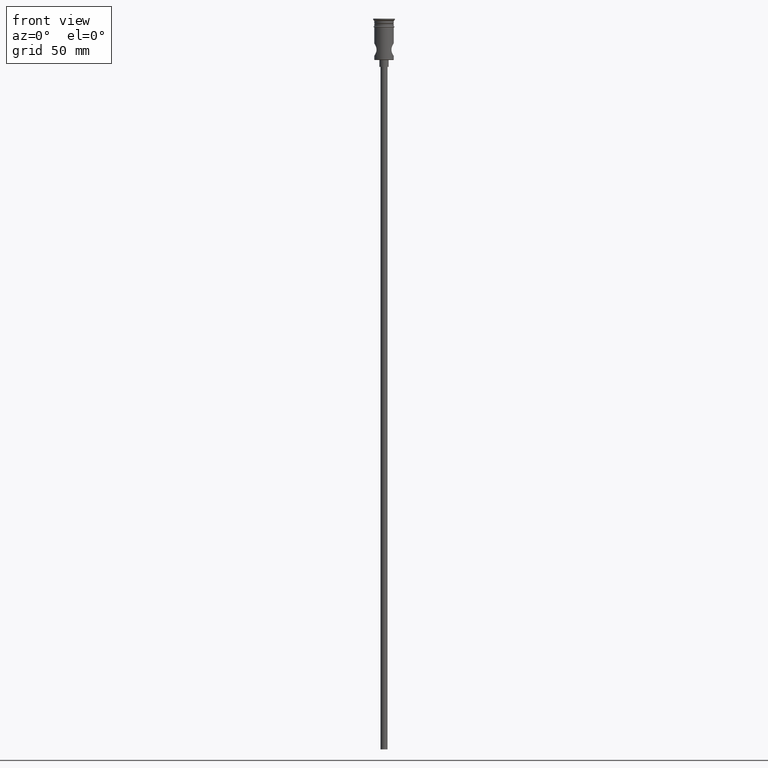
[diagram: clean part render]
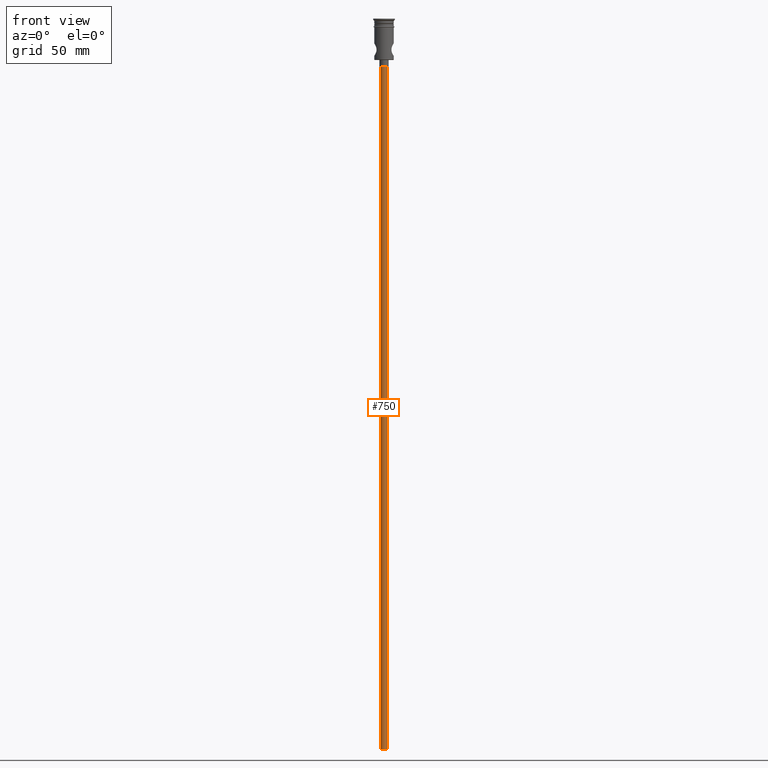
[diagram: same view with one face highlighted and labeled with its STEP entity id]
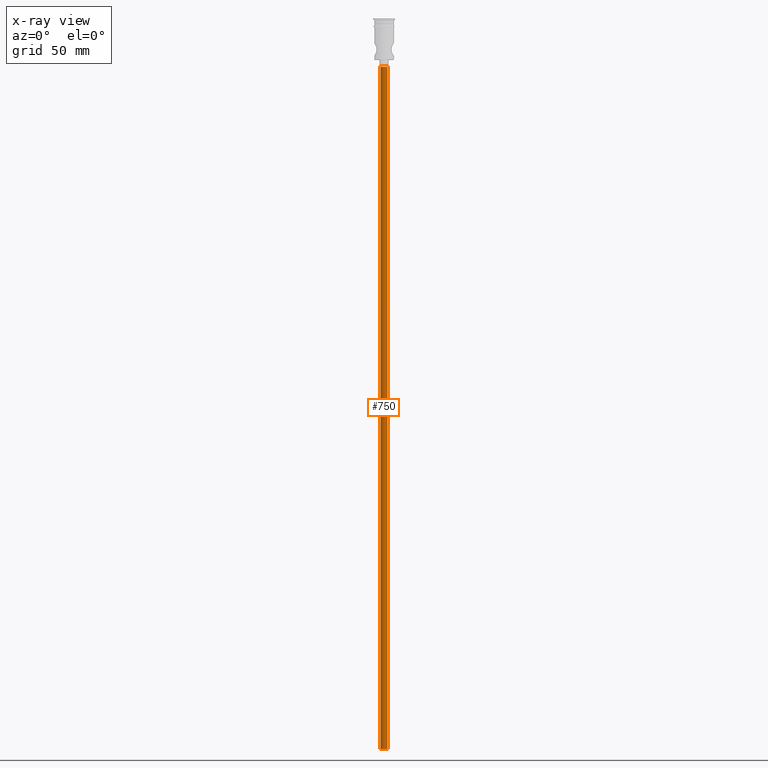
[diagram: x-ray of the same camera — body ghosted, the highlighted face saturated]
A machine part, front view. The second image highlights one B-rep face of the part: STEP entity #750.
The next image is the same camera in x-ray: the body ghosted, the highlighted face saturated — about 0% of this face is hidden behind the body in this view.
In plain terms, the highlighted cylindrical surface (edge-blend (fillet) strip) has radius 1.5 mm, axis along (-0, -0, 1).
Its self-contained STEP definition (entity closure, byte-faithful):
#32 = LINE ( 'NONE', #1305, #168 ) ;
#60 = DIRECTION ( 'NONE',  ( 1.000000000000000000, 0.000000000000000000, 0.000000000000000000 ) ) ;
#64 = ORIENTED_EDGE ( 'NONE', *, *, #224, .T. ) ;
#109 = DIRECTION ( 'NONE',  ( 0.000000000000000000, 0.000000000000000000, -1.000000000000000000 ) ) ;
#168 = VECTOR ( 'NONE', #316, 1000.000000000000000 ) ;
#173 = CARTESIAN_POINT ( 'NONE',  ( 0.000000000000000000, 0.000000000000000000, -318.0000000000000000 ) ) ;
#224 = EDGE_CURVE ( 'NONE', #1190, #788, #32, .T. ) ;
#271 = CYLINDRICAL_SURFACE ( 'NONE', #1117, 1.500000000000000222 ) ;
#316 = DIRECTION ( 'NONE',  ( -0.000000000000000000, -0.000000000000000000, 1.000000000000000000 ) ) ;
#343 = EDGE_CURVE ( 'NONE', #1121, #901, #381, .T. ) ;
#381 = LINE ( 'NONE', #1041, #869 ) ;
#497 = DIRECTION ( 'NONE',  ( -0.000000000000000000, -0.000000000000000000, 1.000000000000000000 ) ) ;
#524 = DIRECTION ( 'NONE',  ( -0.000000000000000000, -0.000000000000000000, 1.000000000000000000 ) ) ;
#568 = DIRECTION ( 'NONE',  ( -1.000000000000000000, 0.000000000000000000, 0.000000000000000000 ) ) ;
#640 = CIRCLE ( 'NONE', #1004, 1.500000000000000222 ) ;
#650 = CARTESIAN_POINT ( 'NONE',  ( 0.000000000000000000, 0.000000000000000000, -20.99999999999999645 ) ) ;
#702 = CARTESIAN_POINT ( 'NONE',  ( -1.500000000000000222, 1.836970198721030181E-16, -318.0000000000000000 ) ) ;
#738 = CIRCLE ( 'NONE', #1421, 1.500000000000000222 ) ;
#750 = ADVANCED_FACE ( 'NONE', ( #1258 ), #271, .T. ) ;
#753 = CARTESIAN_POINT ( 'NONE',  ( 1.500000000000000222, 0.000000000000000000, -20.99999999999999645 ) ) ;
#788 = VERTEX_POINT ( 'NONE', #753 ) ;
#863 = DIRECTION ( 'NONE',  ( 0.000000000000000000, 0.000000000000000000, -1.000000000000000000 ) ) ;
#869 = VECTOR ( 'NONE', #524, 1000.000000000000000 ) ;
#870 = EDGE_CURVE ( 'NONE', #1190, #1121, #738, .T. ) ;
#877 = ORIENTED_EDGE ( 'NONE', *, *, #343, .F. ) ;
#901 = VERTEX_POINT ( 'NONE', #1200 ) ;
#920 = CARTESIAN_POINT ( 'NONE',  ( 1.500000000000000222, 0.000000000000000000, -318.0000000000000000 ) ) ;
#962 = EDGE_LOOP ( 'NONE', ( #877, #1365, #64, #972 ) ) ;
#972 = ORIENTED_EDGE ( 'NONE', *, *, #1429, .T. ) ;
#1004 = AXIS2_PLACEMENT_3D ( 'NONE', #650, #109, #568 ) ;
#1041 = CARTESIAN_POINT ( 'NONE',  ( -1.500000000000000222, 1.836970198721030181E-16, -318.0000000000000000 ) ) ;
#1085 = DIRECTION ( 'NONE',  ( -1.000000000000000000, 0.000000000000000000, 0.000000000000000000 ) ) ;
#1117 = AXIS2_PLACEMENT_3D ( 'NONE', #173, #497, #60 ) ;
#1121 = VERTEX_POINT ( 'NONE', #702 ) ;
#1182 = CARTESIAN_POINT ( 'NONE',  ( 0.000000000000000000, 0.000000000000000000, -318.0000000000000000 ) ) ;
#1190 = VERTEX_POINT ( 'NONE', #920 ) ;
#1200 = CARTESIAN_POINT ( 'NONE',  ( -1.500000000000000222, 1.836970198721030181E-16, -20.99999999999999645 ) ) ;
#1258 = FACE_OUTER_BOUND ( 'NONE', #962, .T. ) ;
#1305 = CARTESIAN_POINT ( 'NONE',  ( 1.500000000000000222, 0.000000000000000000, -318.0000000000000000 ) ) ;
#1365 = ORIENTED_EDGE ( 'NONE', *, *, #870, .F. ) ;
#1421 = AXIS2_PLACEMENT_3D ( 'NONE', #1182, #863, #1085 ) ;
#1429 = EDGE_CURVE ( 'NONE', #788, #901, #640, .T. ) ;